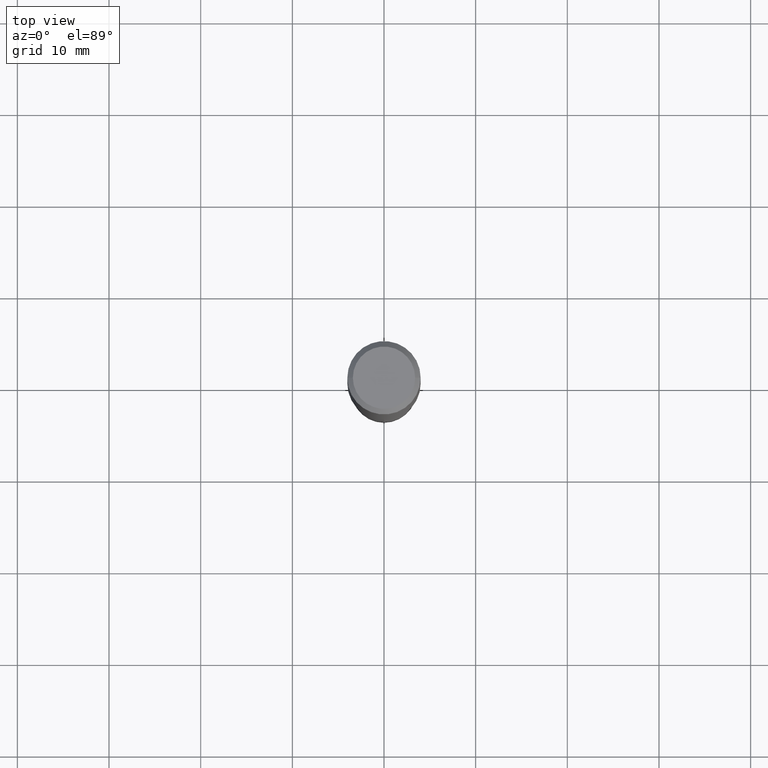
[diagram: clean part render]
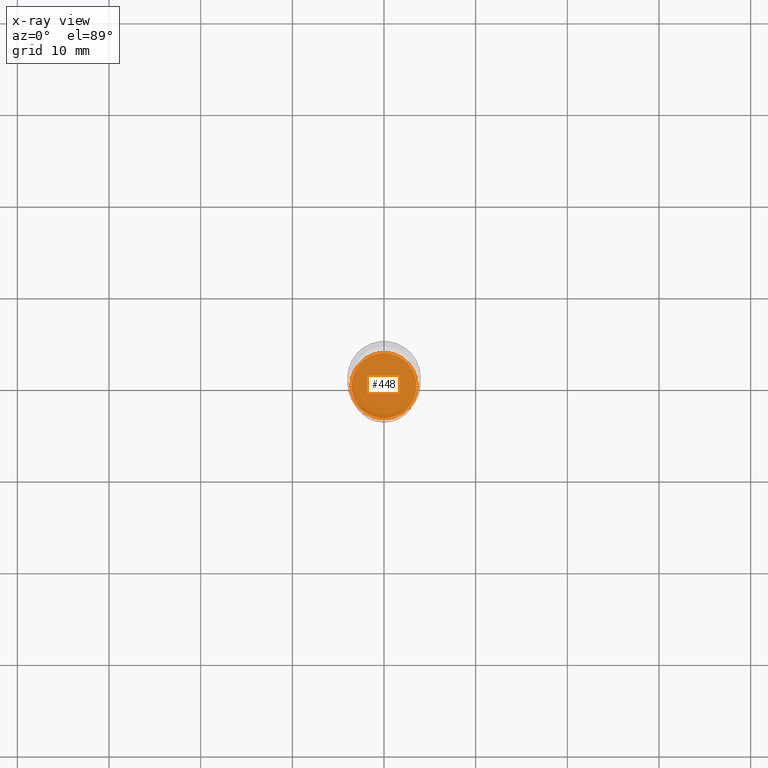
[diagram: x-ray — body ghosted, one internal face saturated and labeled with its STEP entity id]
A machine part, top view, then the same camera in x-ray: the body is ghosted and one INTERNAL B-rep face — a face not visible from any outside direction — is saturated and labeled: STEP entity #448.
In plain terms, the highlighted planar face has unit normal (-0, 0, 1).
Its self-contained STEP definition (entity closure, byte-faithful):
#42 = DIRECTION ( 'NONE',  ( -2.445468806185136597E-29, 3.491481338843145583E-15, 1.000000000000000000 ) ) ;
#66 = FACE_OUTER_BOUND ( 'NONE', #375, .T. ) ;
#80 = CARTESIAN_POINT ( 'NONE',  ( 0.1401000000000000023, -7.851294086656578595E-15, -1.968500000000000139 ) ) ;
#85 = CIRCLE ( 'NONE', #156, 0.1401000000000000023 ) ;
#86 = CARTESIAN_POINT ( 'NONE',  ( 4.813905344975441835E-29, -6.872981015512731707E-15, -1.968500000000000139 ) ) ;
#91 = CIRCLE ( 'NONE', #362, 0.1401000000000000023 ) ;
#119 = DIRECTION ( 'NONE',  ( 1.000000000000000000, -6.982962677686269077E-15, 0.000000000000000000 ) ) ;
#123 = CARTESIAN_POINT ( 'NONE',  ( -0.1401000000000000023, -5.874861415538720918E-15, -1.968500000000000139 ) ) ;
#156 = AXIS2_PLACEMENT_3D ( 'NONE', #86, #42, #164 ) ;
#164 = DIRECTION ( 'NONE',  ( 1.000000000000000000, -6.982962677686269077E-15, 0.000000000000000000 ) ) ;
#218 = VERTEX_POINT ( 'NONE', #123 ) ;
#238 = PLANE ( 'NONE',  #402 ) ;
#256 = DIRECTION ( 'NONE',  ( -2.445468806185136597E-29, 3.491481338843145583E-15, 1.000000000000000000 ) ) ;
#271 = ORIENTED_EDGE ( 'NONE', *, *, #371, .F. ) ;
#274 = EDGE_CURVE ( 'NONE', #218, #406, #91, .T. ) ;
#323 = CARTESIAN_POINT ( 'NONE',  ( 4.813905344975441835E-29, -6.872981015512731707E-15, -1.968500000000000139 ) ) ;
#353 = DIRECTION ( 'NONE',  ( -2.438088387897960049E-29, 3.491481338843145188E-15, 1.000000000000000000 ) ) ;
#362 = AXIS2_PLACEMENT_3D ( 'NONE', #444, #256, #119 ) ;
#371 = EDGE_CURVE ( 'NONE', #406, #218, #85, .T. ) ;
#375 = EDGE_LOOP ( 'NONE', ( #271, #412 ) ) ;
#402 = AXIS2_PLACEMENT_3D ( 'NONE', #323, #353, #481 ) ;
#406 = VERTEX_POINT ( 'NONE', #80 ) ;
#412 = ORIENTED_EDGE ( 'NONE', *, *, #274, .F. ) ;
#444 = CARTESIAN_POINT ( 'NONE',  ( 4.813905344975441835E-29, -6.872981015512731707E-15, -1.968500000000000139 ) ) ;
#448 = ADVANCED_FACE ( 'NONE', ( #66 ), #238, .F. ) ;
#481 = DIRECTION ( 'NONE',  ( 1.000000000000000000, -6.982962677686265922E-15, 4.876176775795935793E-29 ) ) ;